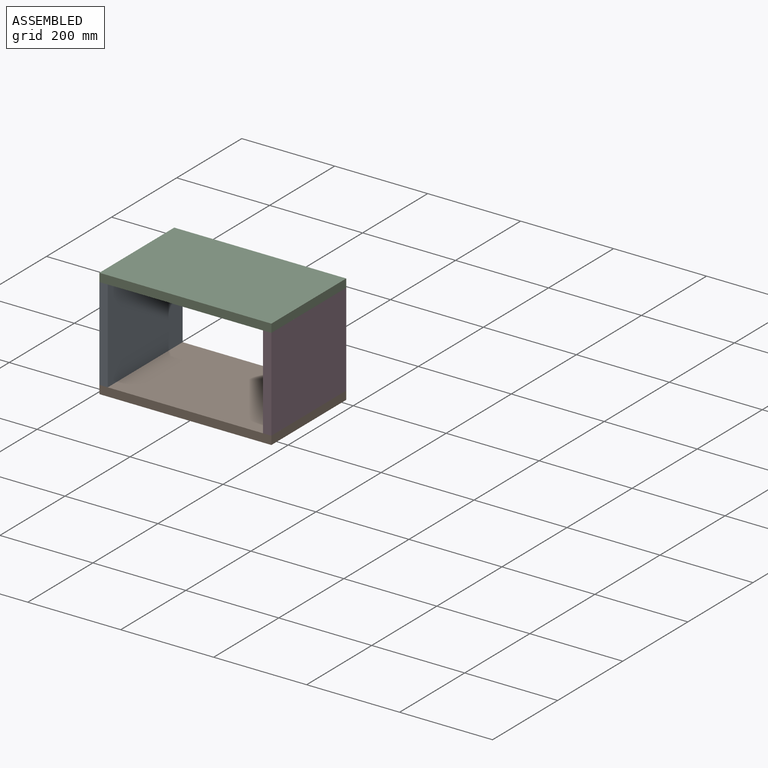
[diagram: assembled view]
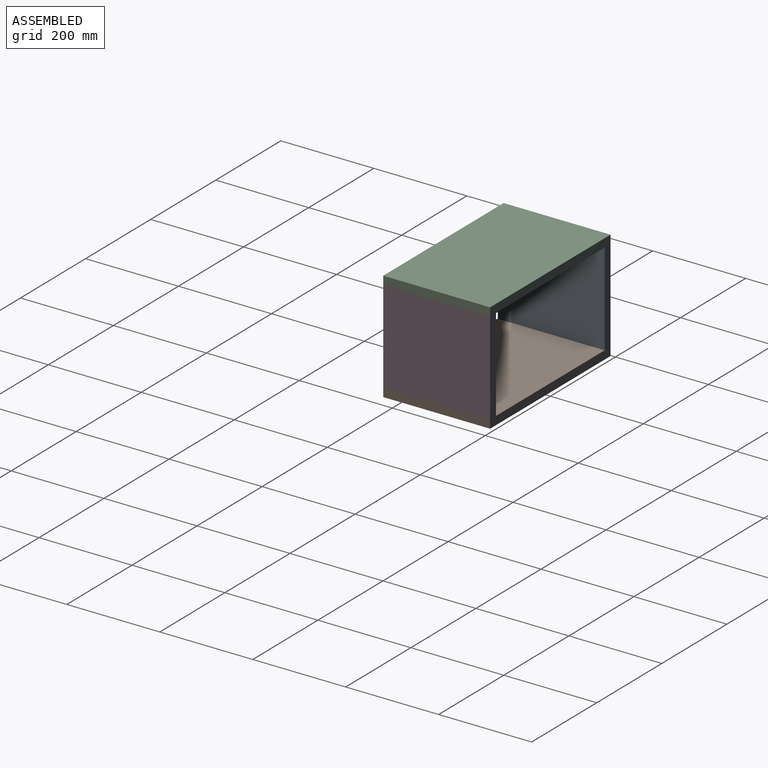
[diagram: assembled view, second angle]
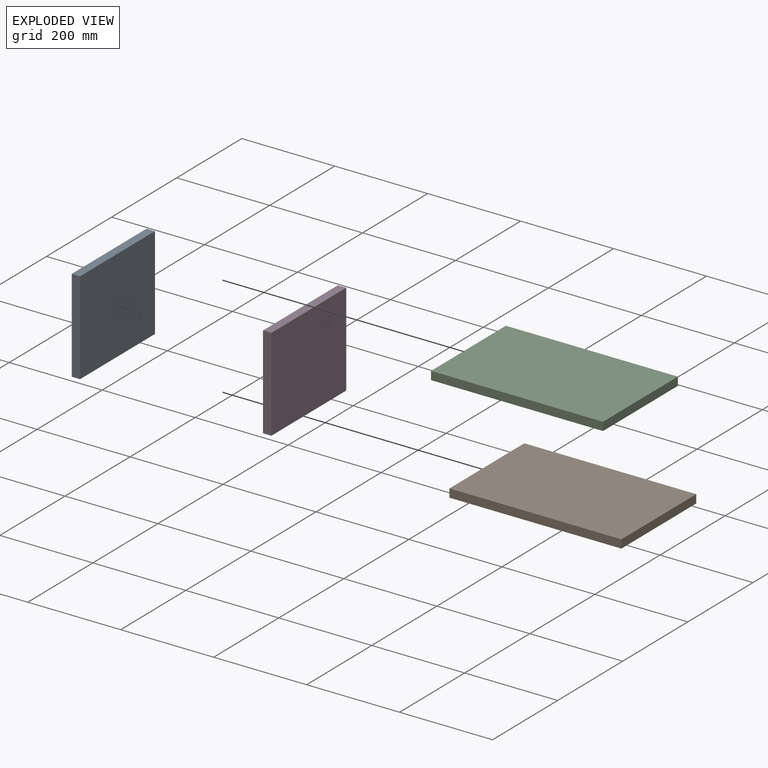
[diagram: exploded view]
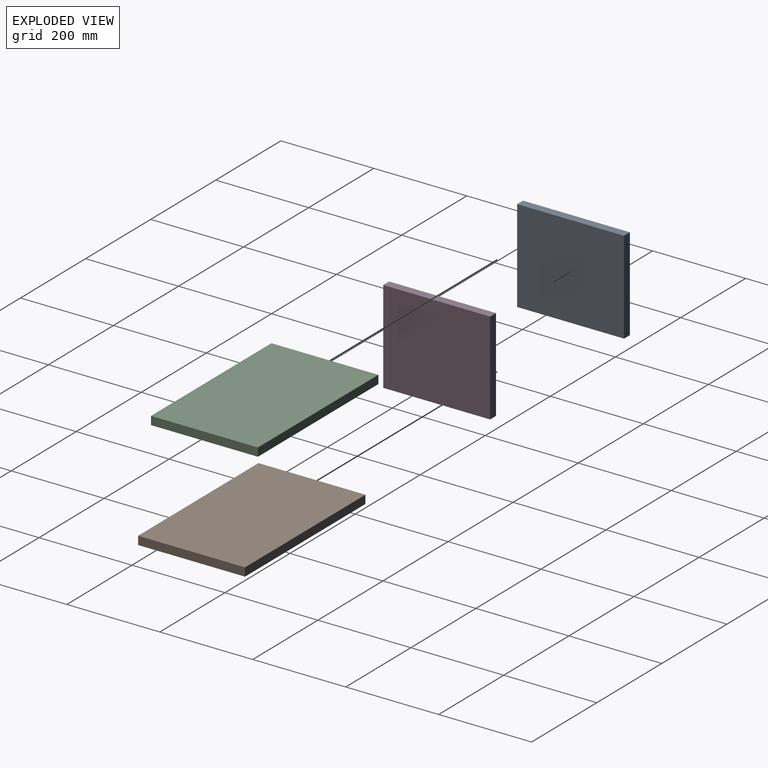
[diagram: exploded view, second angle]
ASSEMBLY  parts=4 mates=3
PART A: 6 faces, bbox 18x230x200 mm
  f0: plane 230x200mm, normal (-1,0,0), area 46000mm2, adj f1,f3,f4,f5
  f1: plane 230x18mm, normal (0,0,-1), area 4140mm2, adj f0,f2,f4,f5
  f2: plane 230x200mm, normal (1,0,0), area 46000mm2, adj f1,f3,f4,f5
  f3: plane 230x18mm, normal (0,0,1), area 4140mm2, adj f0,f2,f4,f5
  f4: plane 200x18mm, normal (0,-1,0), area 3600mm2, adj f0,f1,f2,f3
  f5: plane 200x18mm, normal (0,1,0), area 3600mm2, adj f0,f1,f2,f3
PART B: 6 faces, bbox 370x230x18 mm
  f0: plane 230x18mm, normal (1,0,0), area 4140mm2, adj f1,f3,f4,f5
  f1: plane 370x230mm, normal (0,0,1), area 85100mm2, adj f0,f2,f4,f5
  f2: plane 230x18mm, normal (-1,0,0), area 4140mm2, adj f1,f3,f4,f5
  f3: plane 370x230mm, normal (0,0,-1), area 85100mm2, adj f0,f2,f4,f5
  f4: plane 370x18mm, normal (0,-1,0), area 6660mm2, adj f0,f1,f2,f3
  f5: plane 370x18mm, normal (0,1,0), area 6660mm2, adj f0,f1,f2,f3
PART C: same geometry as B
PART D: same geometry as A
PLACE A at identity
PLACE B at identity fixed
PLACE C t=(0,0,218)mm
PLACE D t=(352,0,0)mm
MATE fastened D.f2 <-> B.f0  axis (1,0,0) through (185,-115,9)mm
MATE fastened A.f0 <-> C.f2  axis (-1,0,0) through (-185,-115,209)mm
MATE fastened A.f0 <-> B.f2  axis (-1,0,0) through (-185,-115,9)mm
